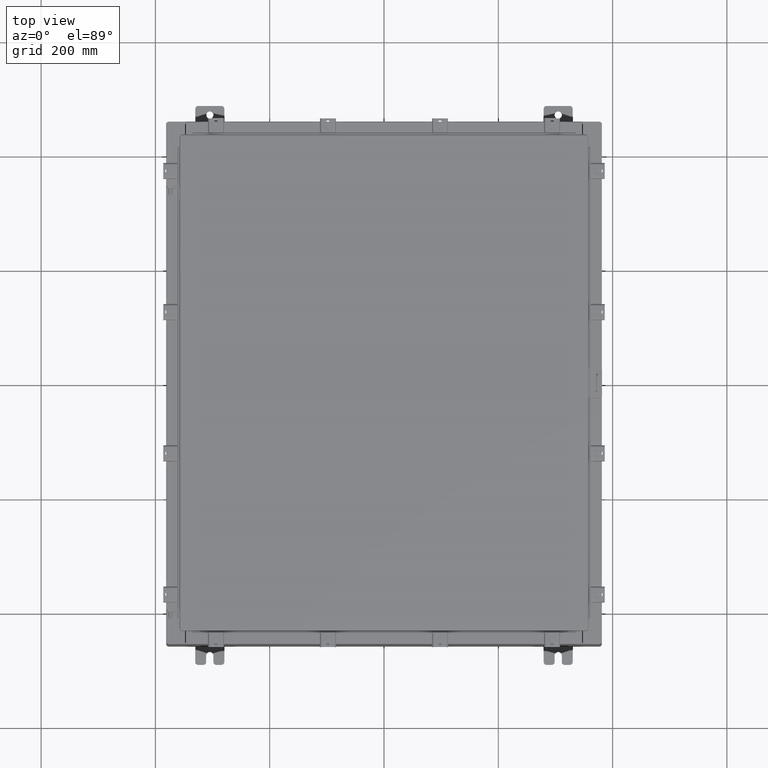
[diagram: clean part render]
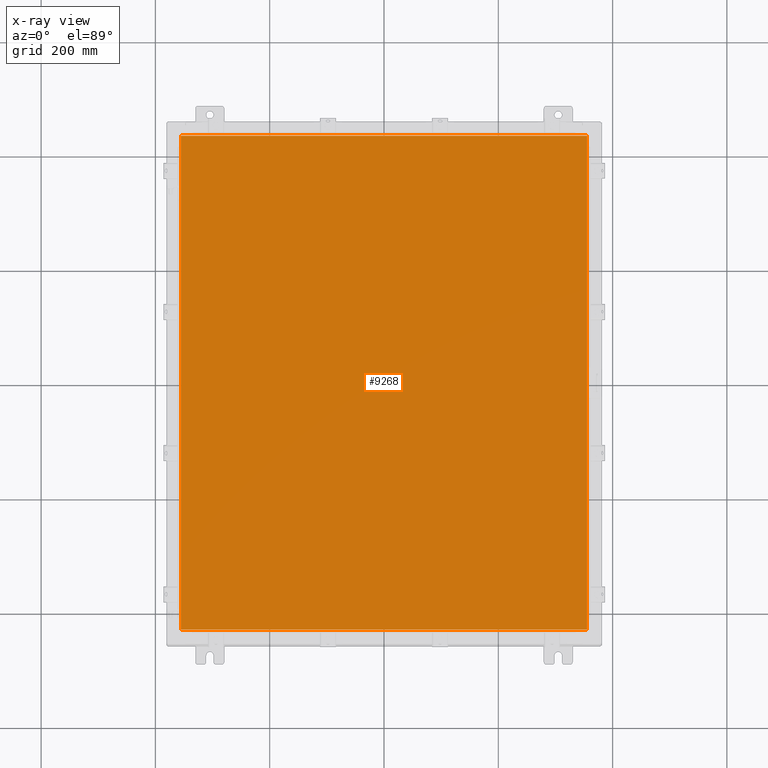
[diagram: x-ray — body ghosted, one internal face saturated and labeled with its STEP entity id]
A machine part, top view, then the same camera in x-ray: the body is ghosted and one INTERNAL B-rep face — a face not visible from any outside direction — is saturated and labeled: STEP entity #9268.
In plain terms, the highlighted planar face has unit normal (0, 0, -1).
Its self-contained STEP definition (entity closure, byte-faithful):
#380 = LINE ( 'NONE', #19617, #14251 ) ;
#1121 = VECTOR ( 'NONE', #10654, 39.37007874015748100 ) ;
#1144 = DIRECTION ( 'NONE',  ( -1.000000000000000000, -0.0000000000000000000, -0.0000000000000000000 ) ) ;
#1876 = VERTEX_POINT ( 'NONE', #8032 ) ;
#2640 = CARTESIAN_POINT ( 'NONE',  ( 13.99029999999999800, -17.00630000000000700, -0.07470000000000019700 ) ) ;
#3050 = CARTESIAN_POINT ( 'NONE',  ( 13.99029999999999600, 17.00629999999999600, -0.07469999999999910000 ) ) ;
#3097 = EDGE_CURVE ( 'NONE', #19709, #8968, #15272, .T. ) ;
#3670 = EDGE_LOOP ( 'NONE', ( #8050, #15102, #19104, #7222 ) ) ;
#5207 = PLANE ( 'NONE',  #11746 ) ;
#6776 = LINE ( 'NONE', #18133, #1121 ) ;
#7126 = DIRECTION ( 'NONE',  ( 0.0000000000000000000, 0.0000000000000000000, -1.000000000000000000 ) ) ;
#7222 = ORIENTED_EDGE ( 'NONE', *, *, #13929, .F. ) ;
#8032 = CARTESIAN_POINT ( 'NONE',  ( -13.99030000000000000, -17.00630000000000300, -0.07470000000000000300 ) ) ;
#8050 = ORIENTED_EDGE ( 'NONE', *, *, #3097, .F. ) ;
#8968 = VERTEX_POINT ( 'NONE', #13458 ) ;
#9224 = EDGE_CURVE ( 'NONE', #1876, #19709, #6776, .T. ) ;
#9268 = ADVANCED_FACE ( 'NONE', ( #20021 ), #5207, .T. ) ;
#9297 = CARTESIAN_POINT ( 'NONE',  ( 13.99029999999999800, -17.00630000000000300, -0.07470000000000000300 ) ) ;
#10249 = DIRECTION ( 'NONE',  ( 0.0000000000000000000, -1.000000000000000000, 0.0000000000000000000 ) ) ;
#10654 = DIRECTION ( 'NONE',  ( 1.000000000000000000, -0.0000000000000000000, -0.0000000000000000000 ) ) ;
#11746 = AXIS2_PLACEMENT_3D ( 'NONE', #16473, #7126, #20276 ) ;
#13056 = CARTESIAN_POINT ( 'NONE',  ( -13.99030000000000000, 17.00629999999999600, -0.07470000000000000300 ) ) ;
#13458 = CARTESIAN_POINT ( 'NONE',  ( 13.99029999999999800, 17.00629999999999600, -0.07470000000000000300 ) ) ;
#13929 = EDGE_CURVE ( 'NONE', #8968, #17887, #17090, .T. ) ;
#14251 = VECTOR ( 'NONE', #10249, 39.37007874015748100 ) ;
#15102 = ORIENTED_EDGE ( 'NONE', *, *, #9224, .F. ) ;
#15272 = LINE ( 'NONE', #2640, #19722 ) ;
#16473 = CARTESIAN_POINT ( 'NONE',  ( 0.0000000000000000000, 0.0000000000000000000, -0.07470000000000000300 ) ) ;
#17090 = LINE ( 'NONE', #3050, #21551 ) ;
#17703 = DIRECTION ( 'NONE',  ( 0.0000000000000000000, 1.000000000000000000, 0.0000000000000000000 ) ) ;
#17887 = VERTEX_POINT ( 'NONE', #13056 ) ;
#18133 = CARTESIAN_POINT ( 'NONE',  ( -13.99029999999999800, -17.00630000000000300, -0.07470000000000019700 ) ) ;
#19104 = ORIENTED_EDGE ( 'NONE', *, *, #22435, .F. ) ;
#19617 = CARTESIAN_POINT ( 'NONE',  ( -13.99030000000000000, 17.00630000000000000, -0.07470000000000019700 ) ) ;
#19709 = VERTEX_POINT ( 'NONE', #9297 ) ;
#19722 = VECTOR ( 'NONE', #17703, 39.37007874015748100 ) ;
#20021 = FACE_OUTER_BOUND ( 'NONE', #3670, .T. ) ;
#20276 = DIRECTION ( 'NONE',  ( -1.000000000000000000, 0.0000000000000000000, -0.0000000000000000000 ) ) ;
#21551 = VECTOR ( 'NONE', #1144, 39.37007874015748100 ) ;
#22435 = EDGE_CURVE ( 'NONE', #17887, #1876, #380, .T. ) ;